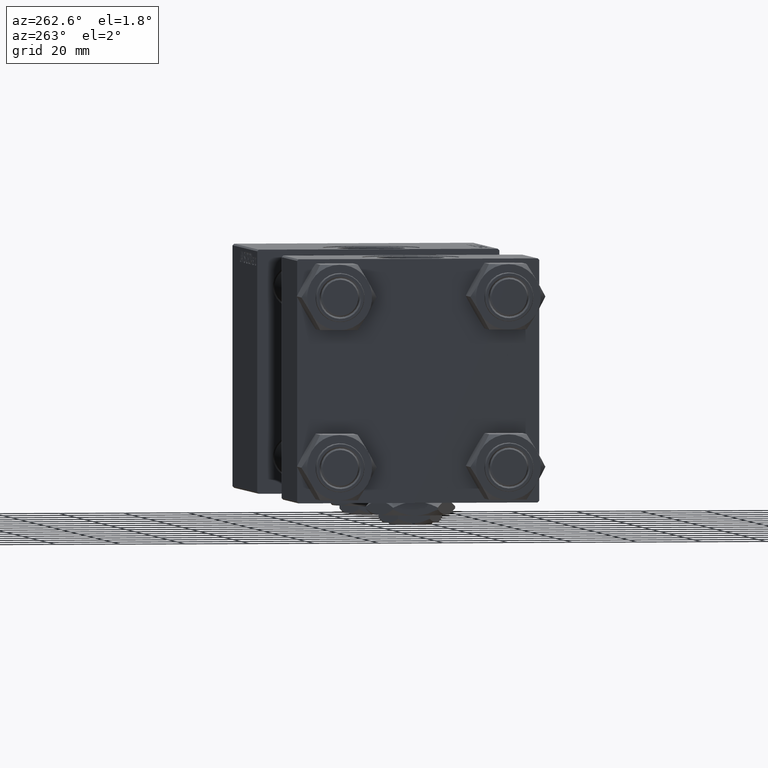
[diagram: clean part render]
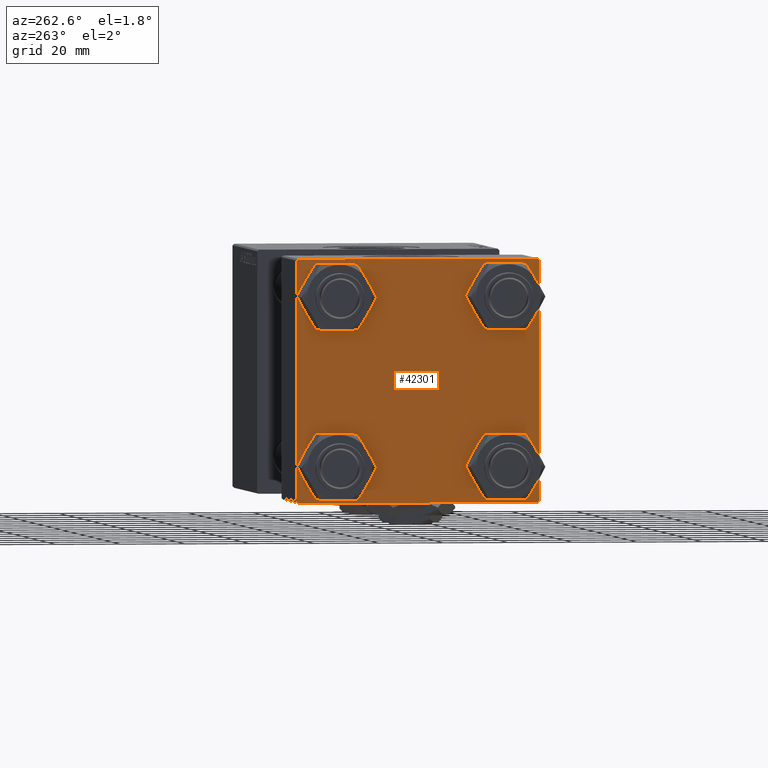
[diagram: same view with one face highlighted and labeled with its STEP entity id]
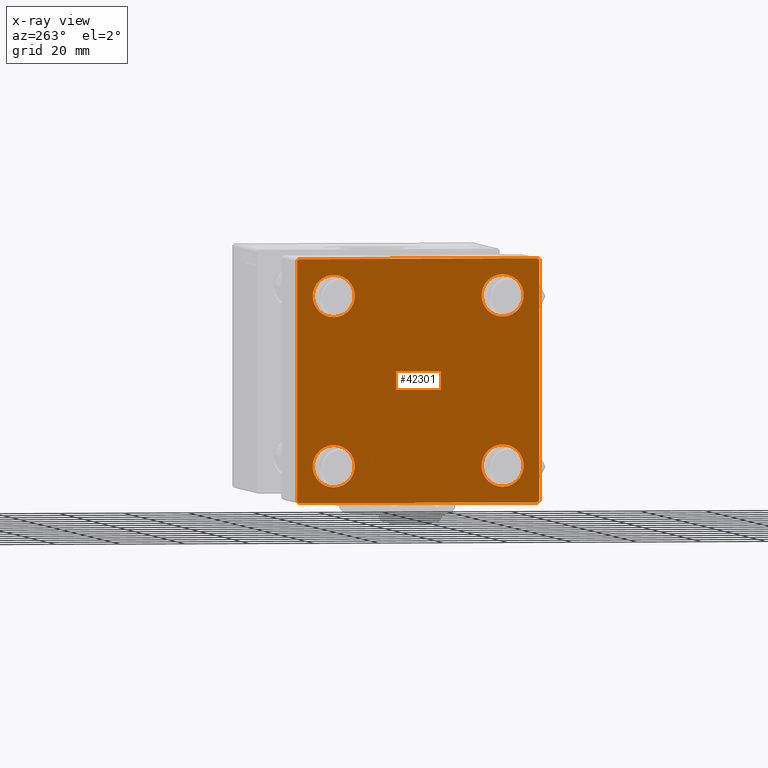
[diagram: x-ray of the same camera — body ghosted, the highlighted face saturated]
A machine part, auxiliary view. The second image highlights one B-rep face of the part: STEP entity #42301.
The next image is the same camera in x-ray: the body ghosted, the highlighted face saturated — about 0% of this face is hidden behind the body in this view.
In plain terms, the highlighted planar face has unit normal (-1, 0, 0).
Its self-contained STEP definition (entity closure, byte-faithful):
#214 = CARTESIAN_POINT ( 'NONE',  ( 0.000000000000000000, -37.24999999999975842, -37.25000000000027001 ) ) ;
#378 = ORIENTED_EDGE ( 'NONE', *, *, #31600, .T. ) ;
#412 = CIRCLE ( 'NONE', #6363, 6.500000000000015987 ) ;
#690 = VERTEX_POINT ( 'NONE', #7203 ) ;
#726 = DIRECTION ( 'NONE',  ( 1.000000000000000000, -0.000000000000000000, 0.000000000000000000 ) ) ;
#881 = ORIENTED_EDGE ( 'NONE', *, *, #21446, .T. ) ;
#1958 = ORIENTED_EDGE ( 'NONE', *, *, #2035, .T. ) ;
#2035 = EDGE_CURVE ( 'NONE', #38416, #40784, #21837, .T. ) ;
#2275 = EDGE_LOOP ( 'NONE', ( #24709, #44496, #25280, #4688, #13223, #33087, #47747, #42506 ) ) ;
#2879 = FACE_BOUND ( 'NONE', #6371, .T. ) ;
#3341 = EDGE_CURVE ( 'NONE', #46587, #28869, #28783, .T. ) ;
#3431 = CARTESIAN_POINT ( 'NONE',  ( 0.000000000000000000, -26.14999999999999147, -26.15000000000000924 ) ) ;
#3606 = CARTESIAN_POINT ( 'NONE',  ( 0.000000000000000000, -26.14999999999999147, 32.65000000000003411 ) ) ;
#3620 = CARTESIAN_POINT ( 'NONE',  ( 0.000000000000000000, 37.49999999999999289, 37.50000000000000000 ) ) ;
#3995 = EDGE_CURVE ( 'NONE', #37846, #39696, #33852, .T. ) ;
#4169 = CARTESIAN_POINT ( 'NONE',  ( 0.000000000000000000, 26.14999999999999858, 26.15000000000000213 ) ) ;
#4688 = ORIENTED_EDGE ( 'NONE', *, *, #3341, .T. ) ;
#6076 = DIRECTION ( 'NONE',  ( 1.000000000000000000, -0.000000000000000000, 0.000000000000000000 ) ) ;
#6363 = AXIS2_PLACEMENT_3D ( 'NONE', #3431, #39628, #44357 ) ;
#6371 = EDGE_LOOP ( 'NONE', ( #378, #12480 ) ) ;
#7203 = CARTESIAN_POINT ( 'NONE',  ( 0.000000000000000000, -26.14999999999999147, -32.65000000000002700 ) ) ;
#7684 = DIRECTION ( 'NONE',  ( -0.000000000000000000, 0.7071067811865474617, 0.7071067811865474617 ) ) ;
#8882 = CARTESIAN_POINT ( 'NONE',  ( 0.000000000000000000, 37.49999999999999289, -36.99999999999998579 ) ) ;
#8921 = LINE ( 'NONE', #37451, #22721 ) ;
#9284 = LINE ( 'NONE', #34572, #42469 ) ;
#10310 = FACE_BOUND ( 'NONE', #19715, .T. ) ;
#10563 = CARTESIAN_POINT ( 'NONE',  ( 0.000000000000000000, 0.000000000000000000, 0.000000000000000000 ) ) ;
#10849 = AXIS2_PLACEMENT_3D ( 'NONE', #4169, #726, #12108 ) ;
#11019 = DIRECTION ( 'NONE',  ( 0.000000000000000000, 0.000000000000000000, 1.000000000000000000 ) ) ;
#11042 = EDGE_CURVE ( 'NONE', #41047, #690, #13610, .T. ) ;
#11552 = LINE ( 'NONE', #3620, #22470 ) ;
#11651 = AXIS2_PLACEMENT_3D ( 'NONE', #10563, #38821, #50440 ) ;
#12051 = VECTOR ( 'NONE', #17416, 1000.000000000000000 ) ;
#12108 = DIRECTION ( 'NONE',  ( 0.000000000000000000, 0.000000000000000000, 1.000000000000000000 ) ) ;
#12480 = ORIENTED_EDGE ( 'NONE', *, *, #14706, .T. ) ;
#12661 = DIRECTION ( 'NONE',  ( 1.000000000000000000, -0.000000000000000000, 0.000000000000000000 ) ) ;
#13223 = ORIENTED_EDGE ( 'NONE', *, *, #16014, .F. ) ;
#13610 = CIRCLE ( 'NONE', #49859, 6.500000000000015987 ) ;
#13620 = CARTESIAN_POINT ( 'NONE',  ( 0.000000000000000000, -37.50000000000000000, -37.00000000000003553 ) ) ;
#13792 = CARTESIAN_POINT ( 'NONE',  ( 0.000000000000000000, 36.99999999999997868, -37.50000000000000000 ) ) ;
#14405 = VERTEX_POINT ( 'NONE', #41232 ) ;
#14706 = EDGE_CURVE ( 'NONE', #51434, #19265, #50807, .T. ) ;
#14876 = CARTESIAN_POINT ( 'NONE',  ( 0.000000000000000000, 26.14999999999999858, 32.65000000000002700 ) ) ;
#15446 = CIRCLE ( 'NONE', #35707, 6.500000000000015987 ) ;
#15480 = EDGE_CURVE ( 'NONE', #29068, #27790, #15446, .T. ) ;
#15592 = CARTESIAN_POINT ( 'NONE',  ( 0.000000000000000000, 26.14999999999999858, -26.15000000000000213 ) ) ;
#16014 = EDGE_CURVE ( 'NONE', #14405, #28869, #20587, .T. ) ;
#16987 = EDGE_CURVE ( 'NONE', #28804, #18970, #9284, .T. ) ;
#17416 = DIRECTION ( 'NONE',  ( 0.000000000000000000, 9.251858538542971581E-17, -1.000000000000000000 ) ) ;
#17532 = LINE ( 'NONE', #33643, #21705 ) ;
#18449 = DIRECTION ( 'NONE',  ( 1.000000000000000000, -0.000000000000000000, 0.000000000000000000 ) ) ;
#18586 = CARTESIAN_POINT ( 'NONE',  ( 0.000000000000000000, -26.14999999999999147, 19.64999999999999147 ) ) ;
#18970 = VERTEX_POINT ( 'NONE', #35723 ) ;
#18973 = CARTESIAN_POINT ( 'NONE',  ( 0.000000000000000000, 26.14999999999999858, -26.15000000000000213 ) ) ;
#19235 = DIRECTION ( 'NONE',  ( 0.000000000000000000, -1.000000000000000000, -9.251858538542971581E-17 ) ) ;
#19265 = VERTEX_POINT ( 'NONE', #3606 ) ;
#19715 = EDGE_LOOP ( 'NONE', ( #51348, #49379 ) ) ;
#19818 = DIRECTION ( 'NONE',  ( 1.000000000000000000, -0.000000000000000000, 0.000000000000000000 ) ) ;
#20331 = DIRECTION ( 'NONE',  ( 1.000000000000000000, -0.000000000000000000, 0.000000000000000000 ) ) ;
#20354 = CARTESIAN_POINT ( 'NONE',  ( -0.000000000000000000, -37.25000000000000000, 37.25000000000000000 ) ) ;
#20587 = LINE ( 'NONE', #36698, #12051 ) ;
#20923 = DIRECTION ( 'NONE',  ( 0.000000000000000000, 0.7071067811865474617, -0.7071067811865474617 ) ) ;
#21125 = DIRECTION ( 'NONE',  ( 0.000000000000000000, 0.000000000000000000, 1.000000000000000000 ) ) ;
#21446 = EDGE_CURVE ( 'NONE', #690, #41047, #412, .T. ) ;
#21705 = VECTOR ( 'NONE', #41281, 1000.000000000000000 ) ;
#21837 = CIRCLE ( 'NONE', #10849, 6.500000000000023093 ) ;
#22304 = EDGE_CURVE ( 'NONE', #14405, #34709, #32524, .T. ) ;
#22354 = AXIS2_PLACEMENT_3D ( 'NONE', #37490, #12661, #21125 ) ;
#22470 = VECTOR ( 'NONE', #19235, 1000.000000000000000 ) ;
#22721 = VECTOR ( 'NONE', #41130, 1000.000000000000000 ) ;
#22986 = FACE_BOUND ( 'NONE', #25045, .T. ) ;
#24709 = ORIENTED_EDGE ( 'NONE', *, *, #37424, .T. ) ;
#25045 = EDGE_LOOP ( 'NONE', ( #1958, #39930 ) ) ;
#25139 = CARTESIAN_POINT ( 'NONE',  ( 0.000000000000000000, 26.14999999999999858, -19.64999999999998792 ) ) ;
#25280 = ORIENTED_EDGE ( 'NONE', *, *, #44923, .T. ) ;
#25564 = CARTESIAN_POINT ( 'NONE',  ( 0.000000000000000000, -37.00000000000000711, 37.49999999999999289 ) ) ;
#25816 = DIRECTION ( 'NONE',  ( 0.000000000000000000, 0.000000000000000000, 1.000000000000000000 ) ) ;
#25873 = DIRECTION ( 'NONE',  ( 0.000000000000000000, 0.000000000000000000, 1.000000000000000000 ) ) ;
#27790 = VERTEX_POINT ( 'NONE', #43148 ) ;
#28325 = CIRCLE ( 'NONE', #46827, 6.500000000000015987 ) ;
#28783 = LINE ( 'NONE', #214, #48013 ) ;
#28804 = VERTEX_POINT ( 'NONE', #33445 ) ;
#28869 = VERTEX_POINT ( 'NONE', #13620 ) ;
#29068 = VERTEX_POINT ( 'NONE', #25139 ) ;
#29615 = CARTESIAN_POINT ( 'NONE',  ( 0.000000000000000000, -26.14999999999999147, -19.64999999999999503 ) ) ;
#29799 = VECTOR ( 'NONE', #7684, 1000.000000000000114 ) ;
#29877 = DIRECTION ( 'NONE',  ( 0.000000000000000000, 0.000000000000000000, 1.000000000000000000 ) ) ;
#30282 = DIRECTION ( 'NONE',  ( 0.000000000000000000, -0.7071067811865524577, 0.7071067811865426878 ) ) ;
#30407 = FACE_BOUND ( 'NONE', #39824, .T. ) ;
#30866 = ORIENTED_EDGE ( 'NONE', *, *, #11042, .T. ) ;
#31600 = EDGE_CURVE ( 'NONE', #19265, #51434, #47618, .T. ) ;
#32524 = LINE ( 'NONE', #20354, #29799 ) ;
#32846 = EDGE_CURVE ( 'NONE', #27790, #29068, #28325, .T. ) ;
#33087 = ORIENTED_EDGE ( 'NONE', *, *, #22304, .T. ) ;
#33445 = CARTESIAN_POINT ( 'NONE',  ( 0.000000000000000000, 36.99999999999999289, 37.50000000000000000 ) ) ;
#33643 = CARTESIAN_POINT ( 'NONE',  ( 0.000000000000000000, 37.49999999999999289, 37.50000000000000000 ) ) ;
#33708 = AXIS2_PLACEMENT_3D ( 'NONE', #50128, #18449, #25873 ) ;
#33852 = LINE ( 'NONE', #41226, #37071 ) ;
#34351 = PLANE ( 'NONE',  #11651 ) ;
#34572 = CARTESIAN_POINT ( 'NONE',  ( 0.000000000000000000, 37.24999999999999289, 37.24999999999999289 ) ) ;
#34580 = EDGE_CURVE ( 'NONE', #28804, #34709, #11552, .T. ) ;
#34615 = CARTESIAN_POINT ( 'NONE',  ( 0.000000000000000000, -37.00000000000002132, -37.50000000000000711 ) ) ;
#34709 = VERTEX_POINT ( 'NONE', #25564 ) ;
#35707 = AXIS2_PLACEMENT_3D ( 'NONE', #15592, #19818, #35930 ) ;
#35723 = CARTESIAN_POINT ( 'NONE',  ( 0.000000000000000000, 37.49999999999999289, 37.00000000000000000 ) ) ;
#35930 = DIRECTION ( 'NONE',  ( 0.000000000000000000, 0.000000000000000000, 1.000000000000000000 ) ) ;
#36181 = CARTESIAN_POINT ( 'NONE',  ( 0.000000000000000000, -26.14999999999999147, 26.15000000000000924 ) ) ;
#36698 = CARTESIAN_POINT ( 'NONE',  ( 0.000000000000000000, -37.50000000000000711, 37.49999999999999289 ) ) ;
#37071 = VECTOR ( 'NONE', #49932, 1000.000000000000114 ) ;
#37424 = EDGE_CURVE ( 'NONE', #18970, #37846, #17532, .T. ) ;
#37451 = CARTESIAN_POINT ( 'NONE',  ( 0.000000000000000000, 37.49999999999999289, -37.50000000000000000 ) ) ;
#37490 = CARTESIAN_POINT ( 'NONE',  ( 0.000000000000000000, -26.14999999999999147, 26.15000000000000924 ) ) ;
#37846 = VERTEX_POINT ( 'NONE', #8882 ) ;
#38416 = VERTEX_POINT ( 'NONE', #14876 ) ;
#38821 = DIRECTION ( 'NONE',  ( -1.000000000000000000, 0.000000000000000000, -0.000000000000000000 ) ) ;
#39628 = DIRECTION ( 'NONE',  ( 1.000000000000000000, -0.000000000000000000, 0.000000000000000000 ) ) ;
#39696 = VERTEX_POINT ( 'NONE', #13792 ) ;
#39737 = CIRCLE ( 'NONE', #33708, 6.500000000000023093 ) ;
#39824 = EDGE_LOOP ( 'NONE', ( #30866, #881 ) ) ;
#39930 = ORIENTED_EDGE ( 'NONE', *, *, #50237, .T. ) ;
#40068 = DIRECTION ( 'NONE',  ( 1.000000000000000000, -0.000000000000000000, 0.000000000000000000 ) ) ;
#40784 = VERTEX_POINT ( 'NONE', #49966 ) ;
#41047 = VERTEX_POINT ( 'NONE', #29615 ) ;
#41130 = DIRECTION ( 'NONE',  ( 0.000000000000000000, -1.000000000000000000, -9.251858538542972814E-17 ) ) ;
#41226 = CARTESIAN_POINT ( 'NONE',  ( 0.000000000000000000, 37.24999999999998579, -37.24999999999998579 ) ) ;
#41232 = CARTESIAN_POINT ( 'NONE',  ( 0.000000000000000000, -37.50000000000000711, 36.99999999999999289 ) ) ;
#41281 = DIRECTION ( 'NONE',  ( 0.000000000000000000, 0.000000000000000000, -1.000000000000000000 ) ) ;
#42301 = ADVANCED_FACE ( 'NONE', ( #2879, #30407, #10310, #22986, #46203 ), #34351, .T. ) ;
#42358 = AXIS2_PLACEMENT_3D ( 'NONE', #36181, #20331, #25816 ) ;
#42469 = VECTOR ( 'NONE', #20923, 1000.000000000000114 ) ;
#42506 = ORIENTED_EDGE ( 'NONE', *, *, #16987, .T. ) ;
#43148 = CARTESIAN_POINT ( 'NONE',  ( 0.000000000000000000, 26.14999999999999858, -32.65000000000001990 ) ) ;
#44357 = DIRECTION ( 'NONE',  ( 0.000000000000000000, 0.000000000000000000, 1.000000000000000000 ) ) ;
#44496 = ORIENTED_EDGE ( 'NONE', *, *, #3995, .T. ) ;
#44923 = EDGE_CURVE ( 'NONE', #39696, #46587, #8921, .T. ) ;
#45416 = CARTESIAN_POINT ( 'NONE',  ( 0.000000000000000000, -26.14999999999999147, -26.15000000000000924 ) ) ;
#46203 = FACE_OUTER_BOUND ( 'NONE', #2275, .T. ) ;
#46587 = VERTEX_POINT ( 'NONE', #34615 ) ;
#46827 = AXIS2_PLACEMENT_3D ( 'NONE', #18973, #40068, #11019 ) ;
#47618 = CIRCLE ( 'NONE', #22354, 6.500000000000023093 ) ;
#47747 = ORIENTED_EDGE ( 'NONE', *, *, #34580, .F. ) ;
#48013 = VECTOR ( 'NONE', #30282, 1000.000000000000000 ) ;
#49379 = ORIENTED_EDGE ( 'NONE', *, *, #32846, .T. ) ;
#49859 = AXIS2_PLACEMENT_3D ( 'NONE', #45416, #6076, #29877 ) ;
#49932 = DIRECTION ( 'NONE',  ( -0.000000000000000000, -0.7071067811865474617, -0.7071067811865474617 ) ) ;
#49966 = CARTESIAN_POINT ( 'NONE',  ( 0.000000000000000000, 26.14999999999999858, 19.64999999999998437 ) ) ;
#50128 = CARTESIAN_POINT ( 'NONE',  ( 0.000000000000000000, 26.14999999999999858, 26.15000000000000213 ) ) ;
#50237 = EDGE_CURVE ( 'NONE', #40784, #38416, #39737, .T. ) ;
#50440 = DIRECTION ( 'NONE',  ( -0.000000000000000000, 0.000000000000000000, 1.000000000000000000 ) ) ;
#50807 = CIRCLE ( 'NONE', #42358, 6.500000000000023093 ) ;
#51348 = ORIENTED_EDGE ( 'NONE', *, *, #15480, .T. ) ;
#51434 = VERTEX_POINT ( 'NONE', #18586 ) ;